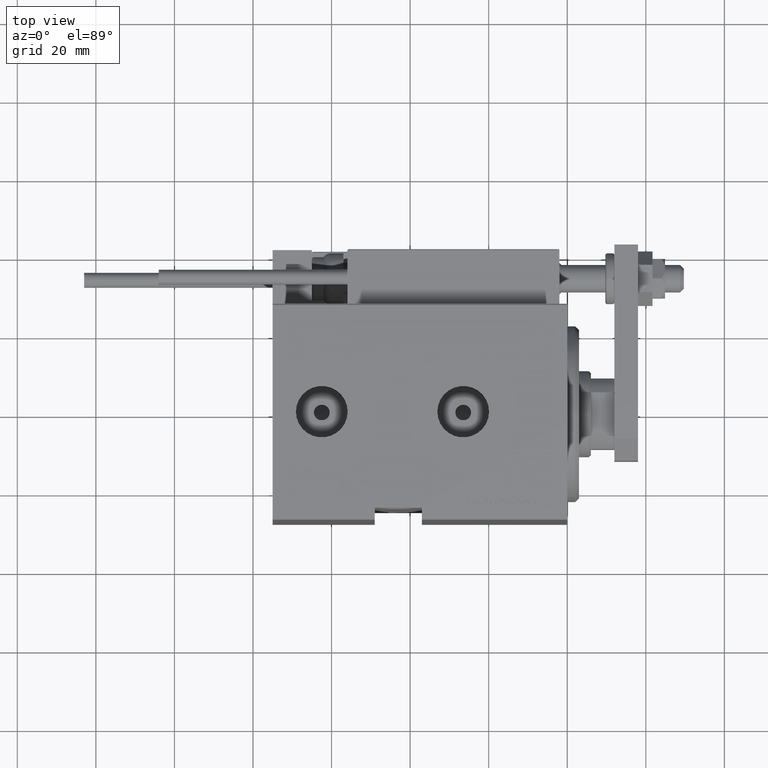
[diagram: clean part render]
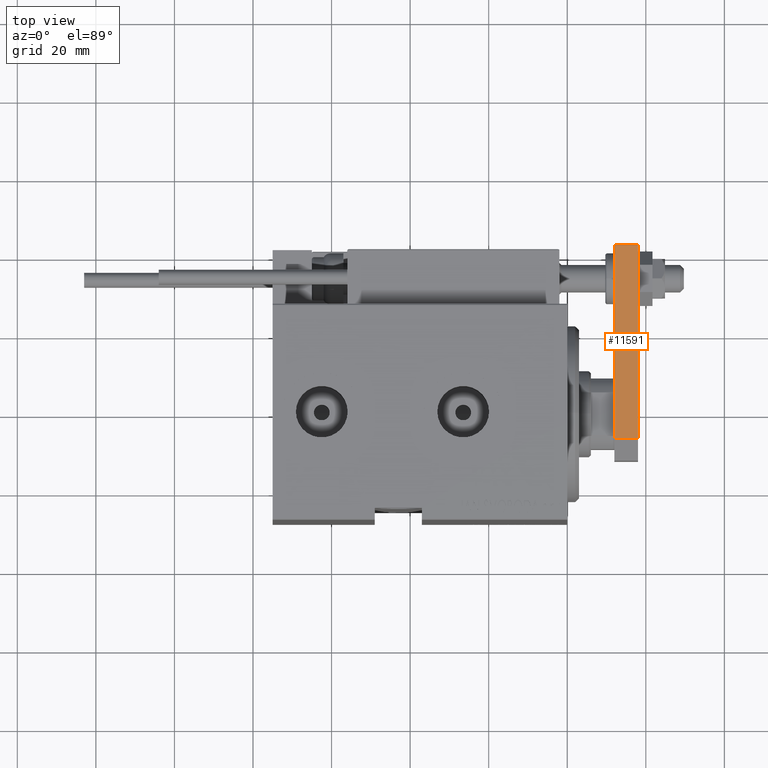
[diagram: same view with one face highlighted and labeled with its STEP entity id]
A machine part, top view. The second image highlights one B-rep face of the part: STEP entity #11591.
In plain terms, the highlighted planar face has unit normal (-0, -0, -1).
Its self-contained STEP definition (entity closure, byte-faithful):
#441 = ORIENTED_EDGE ( 'NONE', *, *, #8712, .F. ) ;
#2141 = VECTOR ( 'NONE', #18116, 1000.000000000000000 ) ;
#8712 = EDGE_CURVE ( 'NONE', #43185, #37574, #30230, .T. ) ;
#11533 = EDGE_LOOP ( 'NONE', ( #35187, #18567, #441, #20632 ) ) ;
#11591 = ADVANCED_FACE ( 'NONE', ( #26853 ), #18879, .F. ) ;
#14320 = VECTOR ( 'NONE', #32023, 1000.000000000000000 ) ;
#16313 = LINE ( 'NONE', #26881, #14320 ) ;
#16463 = LINE ( 'NONE', #29044, #18524 ) ;
#18116 = DIRECTION ( 'NONE',  ( -9.462128050782584375E-17, -1.000000000000000000, 0.000000000000000000 ) ) ;
#18524 = VECTOR ( 'NONE', #44765, 1000.000000000000000 ) ;
#18567 = ORIENTED_EDGE ( 'NONE', *, *, #43580, .T. ) ;
#18879 = PLANE ( 'NONE',  #25568 ) ;
#20632 = ORIENTED_EDGE ( 'NONE', *, *, #50181, .T. ) ;
#21326 = EDGE_CURVE ( 'NONE', #25392, #44738, #16463, .T. ) ;
#25392 = VERTEX_POINT ( 'NONE', #32982 ) ;
#25568 = AXIS2_PLACEMENT_3D ( 'NONE', #50296, #38953, #30732 ) ;
#26853 = FACE_OUTER_BOUND ( 'NONE', #11533, .T. ) ;
#26881 = CARTESIAN_POINT ( 'NONE',  ( -12.49999999999999822, 55.00000000000000000, 6.000000000000000000 ) ) ;
#28209 = LINE ( 'NONE', #47556, #32266 ) ;
#29044 = CARTESIAN_POINT ( 'NONE',  ( -12.49999999999999822, 55.00000000000000000, 0.000000000000000000 ) ) ;
#30230 = LINE ( 'NONE', #31435, #2141 ) ;
#30732 = DIRECTION ( 'NONE',  ( 9.462128050782583143E-17, 1.000000000000000000, 0.000000000000000000 ) ) ;
#31435 = CARTESIAN_POINT ( 'NONE',  ( -12.49999999999999822, 55.00000000000000000, 6.000000000000000000 ) ) ;
#31834 = DIRECTION ( 'NONE',  ( 0.000000000000000000, 0.000000000000000000, 1.000000000000000000 ) ) ;
#32023 = DIRECTION ( 'NONE',  ( -0.000000000000000000, -0.000000000000000000, -1.000000000000000000 ) ) ;
#32266 = VECTOR ( 'NONE', #31834, 1000.000000000000000 ) ;
#32982 = CARTESIAN_POINT ( 'NONE',  ( -12.49999999999999822, 55.00000000000000000, 0.000000000000000000 ) ) ;
#35144 = CARTESIAN_POINT ( 'NONE',  ( -12.50000000000000355, 5.660000000000005471, 0.000000000000000000 ) ) ;
#35187 = ORIENTED_EDGE ( 'NONE', *, *, #21326, .T. ) ;
#36773 = CARTESIAN_POINT ( 'NONE',  ( -12.49999999999999822, 55.00000000000000000, 6.000000000000000000 ) ) ;
#37574 = VERTEX_POINT ( 'NONE', #48064 ) ;
#38953 = DIRECTION ( 'NONE',  ( 1.000000000000000000, -9.462128050782583143E-17, 0.000000000000000000 ) ) ;
#43185 = VERTEX_POINT ( 'NONE', #36773 ) ;
#43580 = EDGE_CURVE ( 'NONE', #44738, #37574, #28209, .T. ) ;
#44738 = VERTEX_POINT ( 'NONE', #35144 ) ;
#44765 = DIRECTION ( 'NONE',  ( -9.462128050782584375E-17, -1.000000000000000000, 0.000000000000000000 ) ) ;
#47556 = CARTESIAN_POINT ( 'NONE',  ( -12.50000000000000355, 5.660000000000005471, 6.000000000000000000 ) ) ;
#48064 = CARTESIAN_POINT ( 'NONE',  ( -12.50000000000000355, 5.660000000000005471, 6.000000000000000000 ) ) ;
#50181 = EDGE_CURVE ( 'NONE', #43185, #25392, #16313, .T. ) ;
#50296 = CARTESIAN_POINT ( 'NONE',  ( -12.49999999999999822, 55.00000000000000000, 6.000000000000000000 ) ) ;